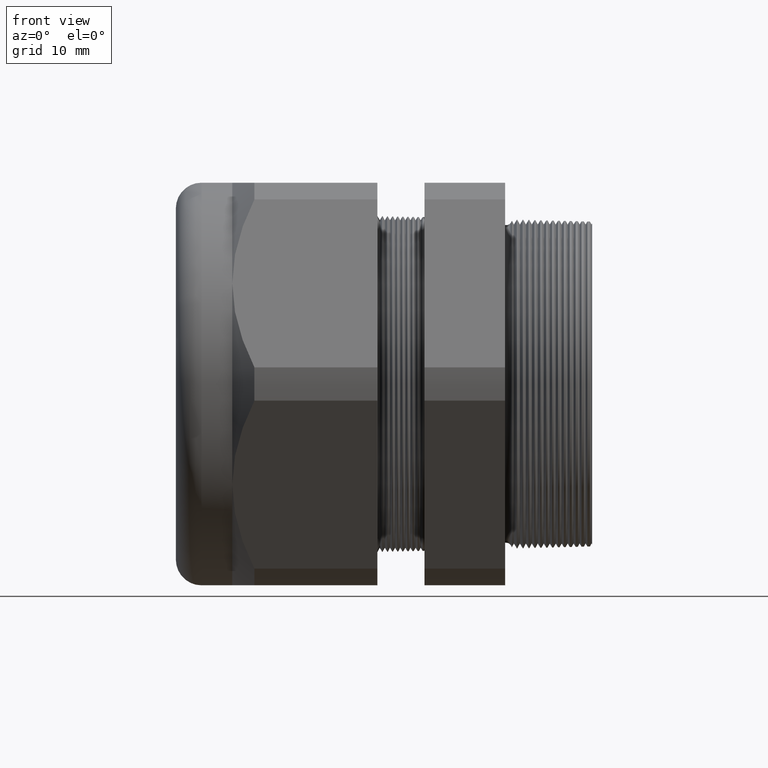
[diagram: clean part render]
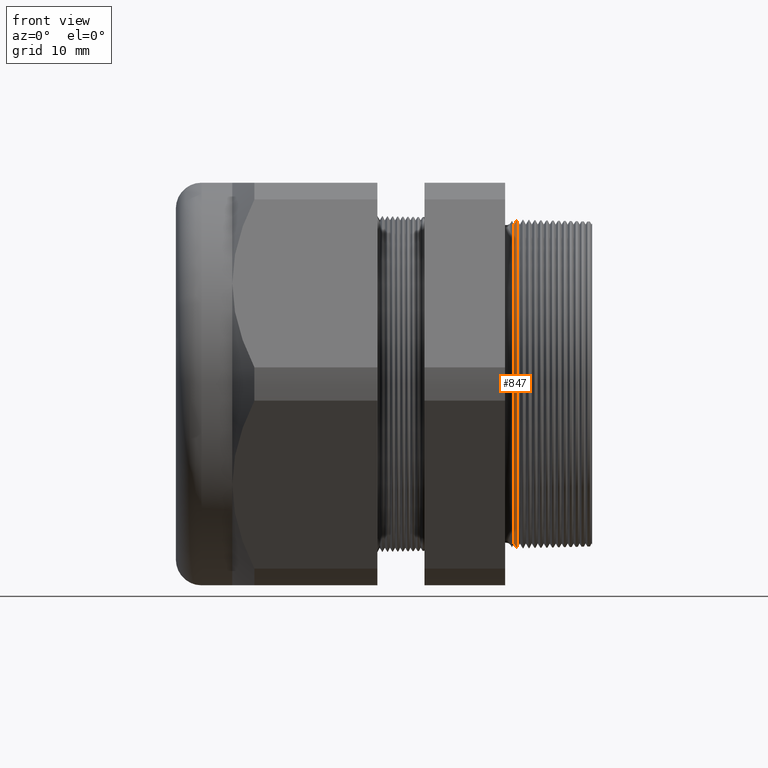
[diagram: same view with one face highlighted and labeled with its STEP entity id]
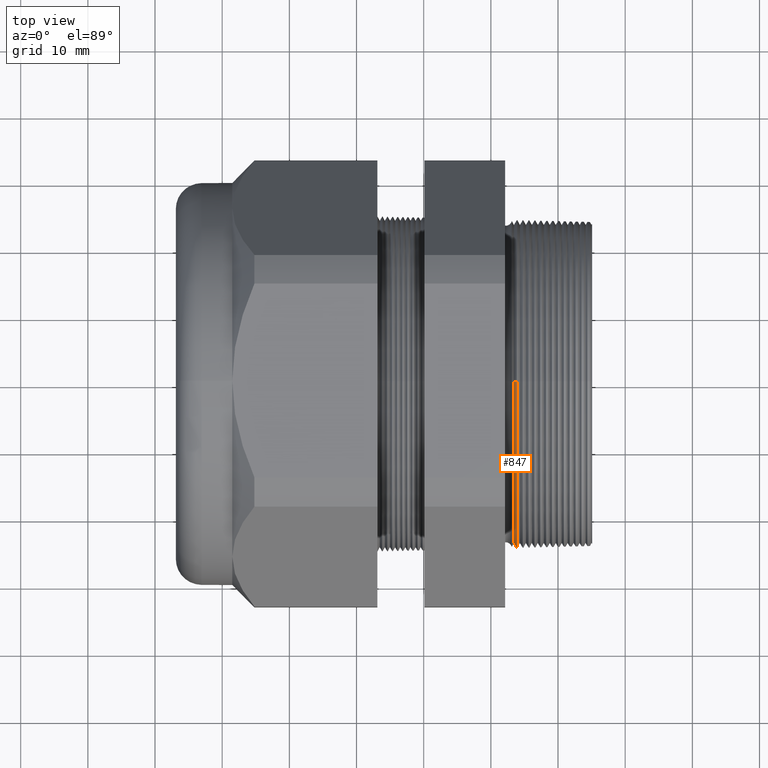
[diagram: same view with one face highlighted and labeled with its STEP entity id]
A machine part, front view. The second image highlights one B-rep face of the part: STEP entity #847.
A second angle (top view) of the same face is appended — the face is thin or edge-on in the first view.
In plain terms, the highlighted conical surface has half-angle 58.5 deg.
Its self-contained STEP definition (entity closure, byte-faithful):
#100 = VERTEX_POINT ( 'NONE', #629 ) ;
#192 = VERTEX_POINT ( 'NONE', #1927 ) ;
#194 = EDGE_CURVE ( 'NONE', #100, #192, #1926, .T. ) ;
#199 = VERTEX_POINT ( 'NONE', #1916 ) ;
#200 = EDGE_CURVE ( 'NONE', #1571, #199, #1915, .T. ) ;
#629 = CARTESIAN_POINT ( 'NONE',  ( -0.2584707356790753600, 1.158938705830853200E-016, -0.9349487908145880400 ) ) ;
#842 = EDGE_LOOP ( 'NONE', ( #881, #882, #880, #878 ) ) ;
#847 = ADVANCED_FACE ( 'NONE', ( #2681 ), #2680, .T. ) ;
#854 = EDGE_CURVE ( 'NONE', #1571, #100, #2733, .T. ) ;
#878 = ORIENTED_EDGE ( 'NONE', *, *, #1292, .T. ) ;
#880 = ORIENTED_EDGE ( 'NONE', *, *, #194, .T. ) ;
#881 = ORIENTED_EDGE ( 'NONE', *, *, #200, .F. ) ;
#882 = ORIENTED_EDGE ( 'NONE', *, *, #854, .T. ) ;
#1292 = EDGE_CURVE ( 'NONE', #192, #199, #3485, .T. ) ;
#1571 = VERTEX_POINT ( 'NONE', #4058 ) ;
#1912 = DIRECTION ( 'NONE',  ( 0.5224985647159357000, 1.044183048100722000E-016, 0.8526401643541002800 ) ) ;
#1913 = VECTOR ( 'NONE', #1912, 39.37007874015748100 ) ;
#1914 = CARTESIAN_POINT ( 'NONE',  ( -0.2584707356790753600, 1.144982044037773600E-016, 0.9349487908145880400 ) ) ;
#1915 = LINE ( 'NONE', #1914, #1913 ) ;
#1916 = CARTESIAN_POINT ( 'NONE',  ( -0.2409236207239137100, 0.0000000000000000000, 0.9635830799584111900 ) ) ;
#1923 = DIRECTION ( 'NONE',  ( 0.5224985647159357000, 0.0000000000000000000, -0.8526401643541002800 ) ) ;
#1924 = VECTOR ( 'NONE', #1923, 39.37007874015748100 ) ;
#1925 = CARTESIAN_POINT ( 'NONE',  ( -0.2584707356790753600, 0.0000000000000000000, -0.9349487908145880400 ) ) ;
#1926 = LINE ( 'NONE', #1925, #1924 ) ;
#1927 = CARTESIAN_POINT ( 'NONE',  ( -0.2409236207239137100, 1.180048934583616500E-016, -0.9635830799584111900 ) ) ;
#2675 = DIRECTION ( 'NONE',  ( 0.0000000000000000000, 0.0000000000000000000, -1.000000000000000000 ) ) ;
#2676 = DIRECTION ( 'NONE',  ( 1.000000000000000000, 0.0000000000000000000, 0.0000000000000000000 ) ) ;
#2677 = CARTESIAN_POINT ( 'NONE',  ( -0.2584707356790753600, 0.0000000000000000000, 0.0000000000000000000 ) ) ;
#2678 = AXIS2_PLACEMENT_3D ( 'NONE', #2677, #2676, #2675 ) ;
#2680 = CONICAL_SURFACE ( 'NONE', #2678, 0.9349487908145880400, 1.021017612416698300 ) ;
#2681 = FACE_OUTER_BOUND ( 'NONE', #842, .T. ) ;
#2729 = DIRECTION ( 'NONE',  ( 0.0000000000000000000, 0.0000000000000000000, -1.000000000000000000 ) ) ;
#2730 = DIRECTION ( 'NONE',  ( 1.000000000000000000, 0.0000000000000000000, 0.0000000000000000000 ) ) ;
#2731 = CARTESIAN_POINT ( 'NONE',  ( -0.2584707356790753600, 0.0000000000000000000, 0.0000000000000000000 ) ) ;
#2732 = AXIS2_PLACEMENT_3D ( 'NONE', #2731, #2730, #2729 ) ;
#2733 = CIRCLE ( 'NONE', #2732, 0.9349487908145880400 ) ;
#3481 = DIRECTION ( 'NONE',  ( 0.0000000000000000000, 0.0000000000000000000, -1.000000000000000000 ) ) ;
#3482 = DIRECTION ( 'NONE',  ( -1.000000000000000000, 0.0000000000000000000, 0.0000000000000000000 ) ) ;
#3483 = CARTESIAN_POINT ( 'NONE',  ( -0.2409236207239137100, 0.0000000000000000000, 0.0000000000000000000 ) ) ;
#3484 = AXIS2_PLACEMENT_3D ( 'NONE', #3483, #3482, #3481 ) ;
#3485 = CIRCLE ( 'NONE', #3484, 0.9635830799584110800 ) ;
#4058 = CARTESIAN_POINT ( 'NONE',  ( -0.2584707356790753600, 0.0000000000000000000, 0.9349487908145880400 ) ) ;